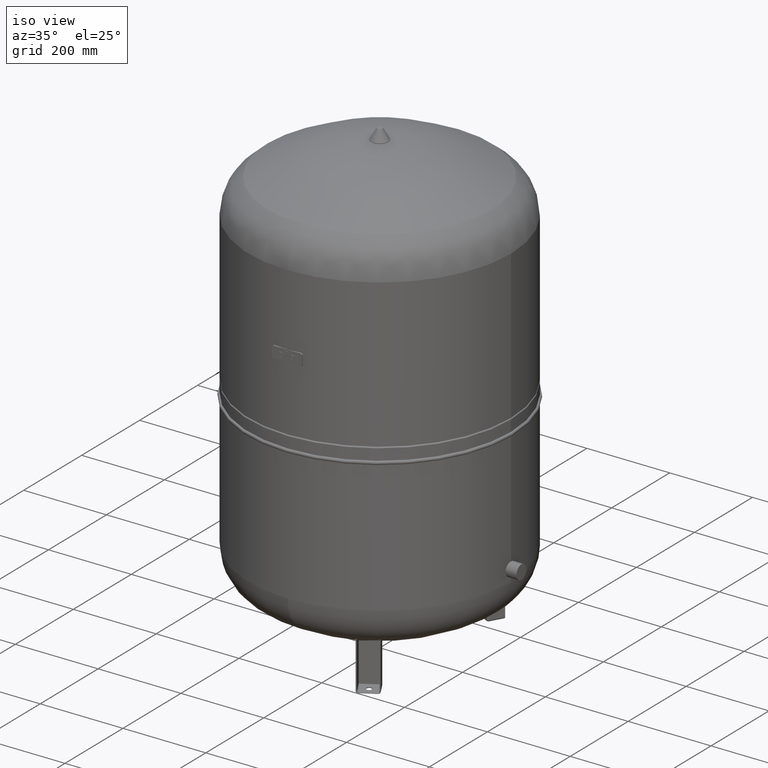
[diagram: clean part render]
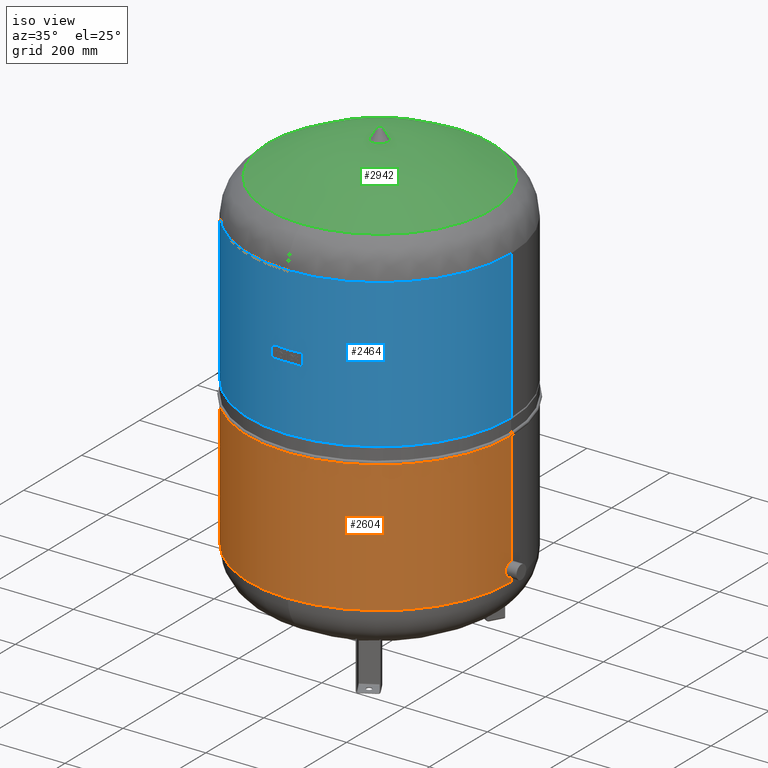
[diagram: same view with three faces highlighted in distinct colors, each labeled with its STEP entity id]
A machine part, iso view with three faces highlighted in distinct colors.
Their STEP definitions:

[orange] entity #2604 — the highlighted cylindrical surface (partial cylindrical patch) has radius 317 mm, axis along (0, 0, 1).
#2544=CARTESIAN_POINT('',(316.999999999999940,0.0,525.600000000000020));
#2545=VERTEX_POINT('',#2544);
#2554=CARTESIAN_POINT('',(-316.999999999999940,-3.882002E-014,525.600000000000020));
#2555=VERTEX_POINT('',#2554);
#2563=CARTESIAN_POINT('',(-1.836608E-015,0.0,525.600000000000020));
#2564=DIRECTION('',(0.0,0.0,1.0));
#2565=DIRECTION('',(1.0,0.0,0.0));
#2566=AXIS2_PLACEMENT_3D('',#2563,#2564,#2565);
#2567=CIRCLE('',#2566,316.999999999999940);
#2568=EDGE_CURVE('',#2555,#2545,#2567,.T.);
#2573=CARTESIAN_POINT('',(-9.262287E-015,0.0,366.299999999999900));
#2574=DIRECTION('',(4.661443E-017,0.0,1.0));
#2575=DIRECTION('',(1.0,0.0,0.0));
#2576=AXIS2_PLACEMENT_3D('',#2573,#2574,#2575);
#2577=CYLINDRICAL_SURFACE('',#2576,316.999999999999940);
#2578=CARTESIAN_POINT('',(317.0,0.0,206.999999999999830));
#2579=VERTEX_POINT('',#2578);
#2580=CARTESIAN_POINT('',(316.999999999999940,0.0,525.600000000000020));
#2581=DIRECTION('',(0.0,0.0,-1.0));
#2582=VECTOR('',#2581,318.600000000000190);
#2583=LINE('',#2580,#2582);
#2584=EDGE_CURVE('',#2545,#2579,#2583,.T.);
#2585=ORIENTED_EDGE('',*,*,#2584,.F.);
#2586=ORIENTED_EDGE('',*,*,#2568,.F.);
#2587=CARTESIAN_POINT('',(-316.999999999999940,-3.882002E-014,206.999999999999890));
#2588=VERTEX_POINT('',#2587);
#2589=CARTESIAN_POINT('',(-316.999999999999940,-3.882002E-014,525.600000000000020));
#2590=DIRECTION('',(0.0,0.0,-1.0));
#2591=VECTOR('',#2590,318.600000000000140);
#2592=LINE('',#2589,#2591);
#2593=EDGE_CURVE('',#2555,#2588,#2592,.T.);
#2594=ORIENTED_EDGE('',*,*,#2593,.T.);
#2595=CARTESIAN_POINT('',(-1.668796E-014,0.0,206.999999999999830));
#2596=DIRECTION('',(0.0,0.0,1.0));
#2597=DIRECTION('',(1.0,0.0,0.0));
#2598=AXIS2_PLACEMENT_3D('',#2595,#2596,#2597);
#2599=CIRCLE('',#2598,317.0);
#2600=EDGE_CURVE('',#2588,#2579,#2599,.T.);
#2601=ORIENTED_EDGE('',*,*,#2600,.T.);
#2602=EDGE_LOOP('',(#2585,#2586,#2594,#2601));
#2603=FACE_OUTER_BOUND('',#2602,.T.);
#2604=ADVANCED_FACE('',(#2603),#2577,.T.);

[blue] entity #2464 — the highlighted cylindrical surface (partial cylindrical patch) has radius 317 mm, axis along (0, 0, 1).
#2423=CARTESIAN_POINT('',(8.343982E-015,0.0,744.0));
#2424=DIRECTION('',(4.661443E-017,0.0,1.0));
#2425=DIRECTION('',(1.0,0.0,0.0));
#2426=AXIS2_PLACEMENT_3D('',#2423,#2424,#2425);
#2427=CYLINDRICAL_SURFACE('',#2426,317.0);
#2428=CARTESIAN_POINT('',(317.0,0.0,922.999999999999890));
#2429=VERTEX_POINT('',#2428);
#2430=CARTESIAN_POINT('',(316.999999999999940,0.0,565.0));
#2431=VERTEX_POINT('',#2430);
#2432=CARTESIAN_POINT('',(317.0,0.0,922.999999999999890));
#2433=DIRECTION('',(0.0,0.0,-1.0));
#2434=VECTOR('',#2433,357.999999999999890);
#2435=LINE('',#2432,#2434);
#2436=EDGE_CURVE('',#2429,#2431,#2435,.T.);
#2437=ORIENTED_EDGE('',*,*,#2436,.F.);
#2438=CARTESIAN_POINT('',(-317.0,-3.882002E-014,922.999999999999890));
#2439=VERTEX_POINT('',#2438);
#2440=CARTESIAN_POINT('',(1.668796E-014,0.0,922.999999999999890));
#2441=DIRECTION('',(0.0,0.0,1.0));
#2442=DIRECTION('',(1.0,0.0,0.0));
#2443=AXIS2_PLACEMENT_3D('',#2440,#2441,#2442);
#2444=CIRCLE('',#2443,317.0);
#2445=EDGE_CURVE('',#2439,#2429,#2444,.T.);
#2446=ORIENTED_EDGE('',*,*,#2445,.F.);
#2447=CARTESIAN_POINT('',(-317.0,-3.882002E-014,565.0));
#2448=VERTEX_POINT('',#2447);
#2449=CARTESIAN_POINT('',(-317.0,-3.882002E-014,922.999999999999890));
#2450=DIRECTION('',(0.0,0.0,-1.0));
#2451=VECTOR('',#2450,357.999999999999890);
#2452=LINE('',#2449,#2451);
#2453=EDGE_CURVE('',#2439,#2448,#2452,.T.);
#2454=ORIENTED_EDGE('',*,*,#2453,.T.);
#2455=CARTESIAN_POINT('',(0.0,0.0,565.0));
#2456=DIRECTION('',(0.0,0.0,1.0));
#2457=DIRECTION('',(1.0,0.0,0.0));
#2458=AXIS2_PLACEMENT_3D('',#2455,#2456,#2457);
#2459=CIRCLE('',#2458,316.999999999999940);
#2460=EDGE_CURVE('',#2448,#2431,#2459,.T.);
#2461=ORIENTED_EDGE('',*,*,#2460,.T.);
#2462=EDGE_LOOP('',(#2437,#2446,#2454,#2461));
#2463=FACE_OUTER_BOUND('',#2462,.T.);
#2464=ADVANCED_FACE('',(#2463),#2427,.T.);

[green] entity #2942 — the highlighted face is a freeform B-spline surface patch.
#2868=CARTESIAN_POINT('',(8.065826E-015,-270.639024390243830,1007.086439681297500));
#2869=VERTEX_POINT('',#2868);
#2887=CARTESIAN_POINT('',(-2.507680E-014,270.639024390243830,1007.086439681297500));
#2888=VERTEX_POINT('',#2887);
#2896=CARTESIAN_POINT('',(-7.495146E-015,-1.431249E-014,1007.086439681297500));
#2897=DIRECTION('',(0.0,0.0,1.0));
#2898=DIRECTION('',(-1.0,0.0,0.0));
#2899=AXIS2_PLACEMENT_3D('',#2896,#2897,#2898);
#2900=CIRCLE('',#2899,270.639024390243830);
#2901=EDGE_CURVE('',#2869,#2888,#2900,.T.);
#2906=CARTESIAN_POINT('',(-229.211814269567980,270.639024390243890,941.099250446163070));
#2907=CARTESIAN_POINT('',(-319.553692100537090,-2.842171E-014,1085.0));
#2908=CARTESIAN_POINT('',(-229.211814269568010,-270.639024390243950,941.099250446163300));
#2909=CARTESIAN_POINT('',(-5.684342E-014,270.639024390243890,1085.0));
#2910=CARTESIAN_POINT('',(0.0,8.431219E-015,1285.618000265392500));
#2911=CARTESIAN_POINT('',(5.684342E-014,-270.639024390243950,1085.000000000000200));
#2912=CARTESIAN_POINT('',(229.211814269567810,270.639024390243890,941.099250446163070));
#2913=CARTESIAN_POINT('',(319.553692100536920,-2.842171E-014,1085.0));
#2914=CARTESIAN_POINT('',(229.211814269568010,-270.639024390243950,941.099250446163070));
#2922=(BOUNDED_SURFACE()B_SPLINE_SURFACE(2,2,((#2906,#2909,#2912),(#2907,#2910,#2913),(#2908,#2911,#2914)),.UNSPECIFIED.,.F.,.F.,.U.)B_SPLINE_SURFACE_WITH_KNOTS((3,3),(3,3),(-0.560615186256406,0.560615186256406),(0.0,1.121230372512813),.UNSPECIFIED.)GEOMETRIC_REPRESENTATION_ITEM()RATIONAL_B_SPLINE_SURFACE(((1.0,0.846928172261881,1.0),(0.846928172261881,0.717287328970851,0.846928172261881),(1.0,0.846928172261881,1.0)))REPRESENTATION_ITEM('')SURFACE());
#2923=CARTESIAN_POINT('',(-270.639024390243830,-1.431249E-014,1007.086439681297600));
#2924=VERTEX_POINT('',#2923);
#2925=CARTESIAN_POINT('',(-7.495146E-015,-1.431249E-014,1007.086439681297500));
#2926=DIRECTION('',(0.0,0.0,1.0));
#2927=DIRECTION('',(-1.0,0.0,0.0));
#2928=AXIS2_PLACEMENT_3D('',#2925,#2926,#2927);
#2929=CIRCLE('',#2928,270.639024390243830);
#2930=EDGE_CURVE('',#2924,#2869,#2929,.T.);
#2931=ORIENTED_EDGE('',*,*,#2930,.T.);
#2932=ORIENTED_EDGE('',*,*,#2901,.T.);
#2933=CARTESIAN_POINT('',(-7.495146E-015,-1.431249E-014,1007.086439681297500));
#2934=DIRECTION('',(0.0,0.0,1.0));
#2935=DIRECTION('',(-1.0,0.0,0.0));
#2936=AXIS2_PLACEMENT_3D('',#2933,#2934,#2935);
#2937=CIRCLE('',#2936,270.639024390243830);
#2938=EDGE_CURVE('',#2888,#2924,#2937,.T.);
#2939=ORIENTED_EDGE('',*,*,#2938,.T.);
#2940=EDGE_LOOP('',(#2931,#2932,#2939));
#2941=FACE_OUTER_BOUND('',#2940,.T.);
#2942=ADVANCED_FACE('',(#2941),#2922,.T.);